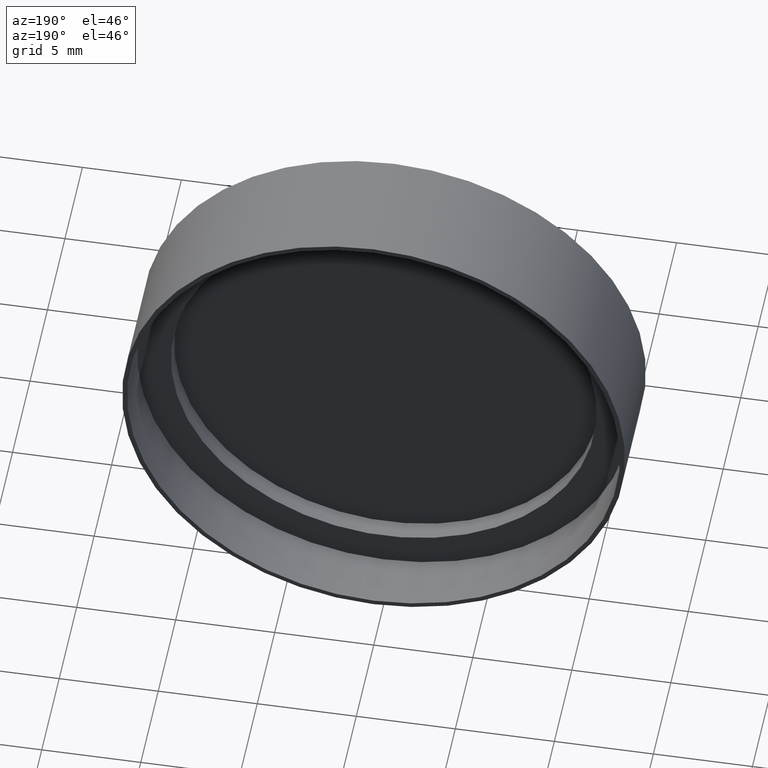
[diagram: clean part render]
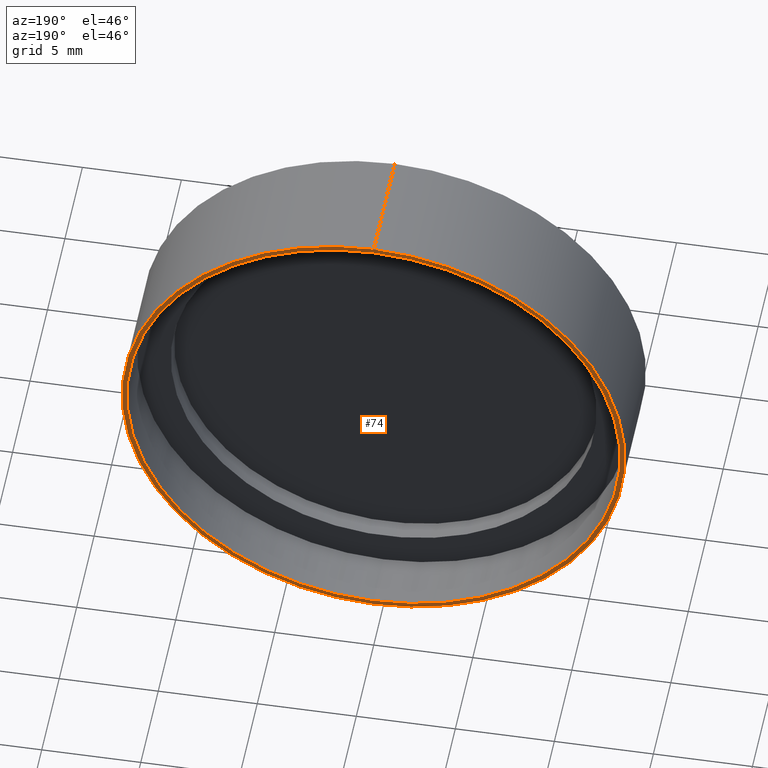
[diagram: same view with one face highlighted and labeled with its STEP entity id]
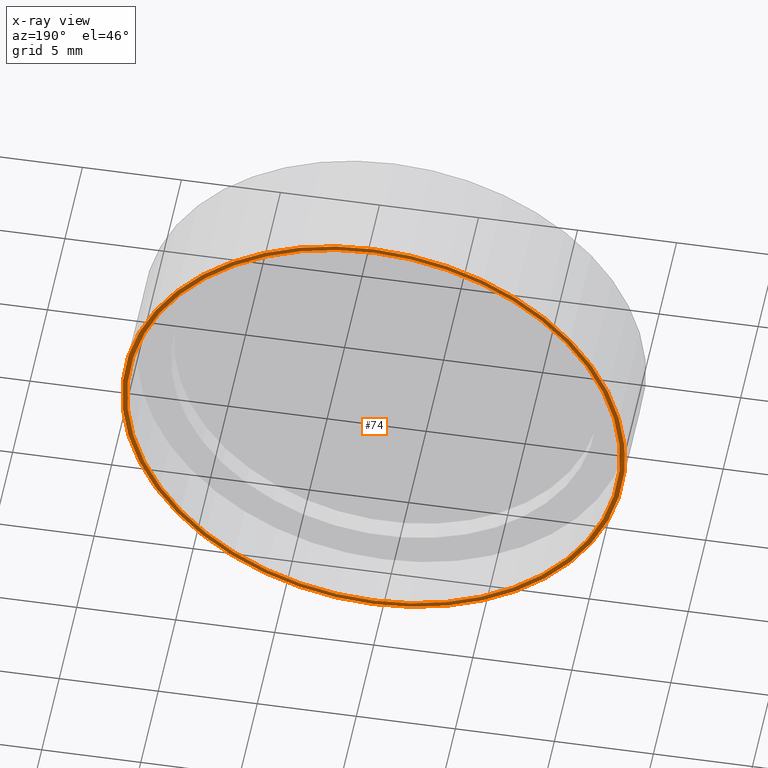
[diagram: x-ray of the same camera — body ghosted, the highlighted face saturated]
A machine part, auxiliary view. The second image highlights one B-rep face of the part: STEP entity #74.
The next image is the same camera in x-ray: the body ghosted, the highlighted face saturated — about 0% of this face is hidden behind the body in this view.
In plain terms, the highlighted planar face has unit normal (0, 1, 0).
Its self-contained STEP definition (entity closure, byte-faithful):
#29 = DIRECTION ( 'NONE',  ( 0.0000000000000000000, 0.0000000000000000000, -1.000000000000000000 ) ) ;
#30 = AXIS2_PLACEMENT_3D ( 'NONE', #355, #359, #686 ) ;
#42 = CARTESIAN_POINT ( 'NONE',  ( -22.14164044491552730, -2.259296399802728228, 0.0000000000000000000 ) ) ;
#47 = FACE_BOUND ( 'NONE', #426, .T. ) ;
#74 = ADVANCED_FACE ( 'NONE', ( #47, #314 ), #395, .T. ) ;
#86 = EDGE_CURVE ( 'NONE', #304, #637, #769, .T. ) ;
#97 = DIRECTION ( 'NONE',  ( -0.0000000000000000000, -1.000000000000000000, -0.0000000000000000000 ) ) ;
#102 = CARTESIAN_POINT ( 'NONE',  ( -34.59164044491552659, -2.259296399802728228, -12.69999999999999929 ) ) ;
#131 = AXIS2_PLACEMENT_3D ( 'NONE', #585, #590, #718 ) ;
#139 = CARTESIAN_POINT ( 'NONE',  ( -34.59164044491552659, -2.259296399802728228, 12.44999999999999929 ) ) ;
#158 = CARTESIAN_POINT ( 'NONE',  ( -34.59164044491552659, -2.259296399802728228, 0.0000000000000000000 ) ) ;
#184 = EDGE_CURVE ( 'NONE', #758, #482, #393, .T. ) ;
#205 = DIRECTION ( 'NONE',  ( 0.0000000000000000000, 0.0000000000000000000, -1.000000000000000000 ) ) ;
#265 = EDGE_CURVE ( 'NONE', #637, #304, #328, .T. ) ;
#274 = CARTESIAN_POINT ( 'NONE',  ( -34.59164044491552659, -2.259296399802728228, -12.44999999999999929 ) ) ;
#288 = CARTESIAN_POINT ( 'NONE',  ( -34.59164044491552659, -2.259296399802728228, 0.0000000000000000000 ) ) ;
#304 = VERTEX_POINT ( 'NONE', #102 ) ;
#314 = FACE_OUTER_BOUND ( 'NONE', #826, .T. ) ;
#328 = CIRCLE ( 'NONE', #704, 12.69999999999999929 ) ;
#355 = CARTESIAN_POINT ( 'NONE',  ( -34.59164044491552659, -2.259296399802728228, 0.0000000000000000000 ) ) ;
#357 = DIRECTION ( 'NONE',  ( -0.0000000000000000000, -1.000000000000000000, -0.0000000000000000000 ) ) ;
#359 = DIRECTION ( 'NONE',  ( -0.0000000000000000000, -1.000000000000000000, -0.0000000000000000000 ) ) ;
#379 = ORIENTED_EDGE ( 'NONE', *, *, #777, .T. ) ;
#386 = DIRECTION ( 'NONE',  ( 0.0000000000000000000, -0.0000000000000000000, 1.000000000000000000 ) ) ;
#393 = CIRCLE ( 'NONE', #602, 12.44999999999999929 ) ;
#395 = PLANE ( 'NONE',  #587 ) ;
#403 = ORIENTED_EDGE ( 'NONE', *, *, #265, .F. ) ;
#407 = ORIENTED_EDGE ( 'NONE', *, *, #184, .T. ) ;
#415 = CIRCLE ( 'NONE', #30, 12.44999999999999929 ) ;
#426 = EDGE_LOOP ( 'NONE', ( #379, #407 ) ) ;
#482 = VERTEX_POINT ( 'NONE', #274 ) ;
#585 = CARTESIAN_POINT ( 'NONE',  ( -34.59164044491552659, -2.259296399802728228, 0.0000000000000000000 ) ) ;
#587 = AXIS2_PLACEMENT_3D ( 'NONE', #42, #782, #386 ) ;
#590 = DIRECTION ( 'NONE',  ( -0.0000000000000000000, -1.000000000000000000, -0.0000000000000000000 ) ) ;
#602 = AXIS2_PLACEMENT_3D ( 'NONE', #288, #357, #205 ) ;
#604 = ORIENTED_EDGE ( 'NONE', *, *, #86, .F. ) ;
#637 = VERTEX_POINT ( 'NONE', #783 ) ;
#686 = DIRECTION ( 'NONE',  ( 0.0000000000000000000, 0.0000000000000000000, -1.000000000000000000 ) ) ;
#704 = AXIS2_PLACEMENT_3D ( 'NONE', #158, #97, #29 ) ;
#718 = DIRECTION ( 'NONE',  ( 0.0000000000000000000, 0.0000000000000000000, -1.000000000000000000 ) ) ;
#758 = VERTEX_POINT ( 'NONE', #139 ) ;
#769 = CIRCLE ( 'NONE', #131, 12.69999999999999929 ) ;
#777 = EDGE_CURVE ( 'NONE', #482, #758, #415, .T. ) ;
#782 = DIRECTION ( 'NONE',  ( 0.0000000000000000000, 1.000000000000000000, 0.0000000000000000000 ) ) ;
#783 = CARTESIAN_POINT ( 'NONE',  ( -34.59164044491552659, -2.259296399802728228, 12.69999999999999929 ) ) ;
#826 = EDGE_LOOP ( 'NONE', ( #604, #403 ) ) ;